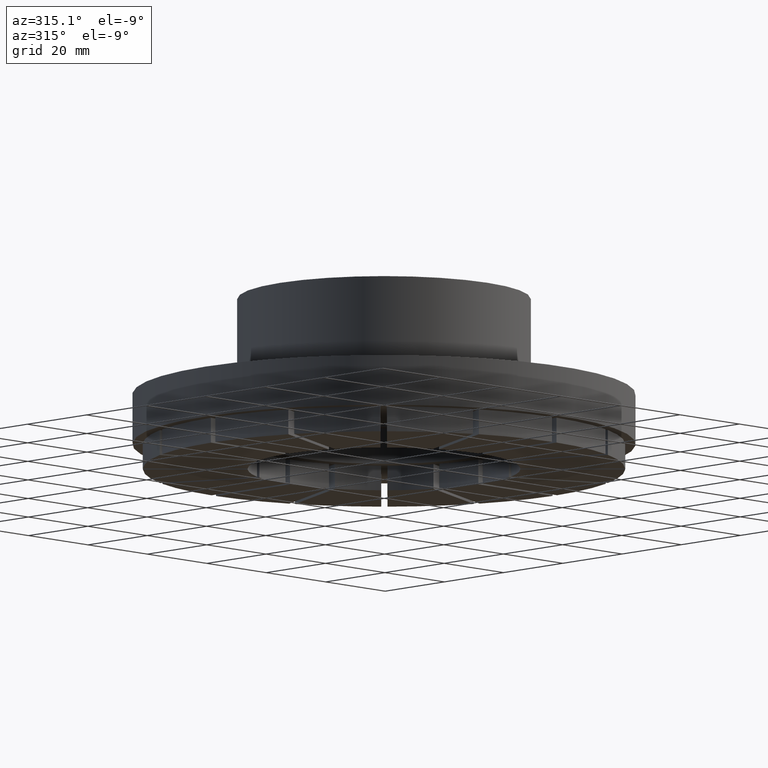
[diagram: clean part render]
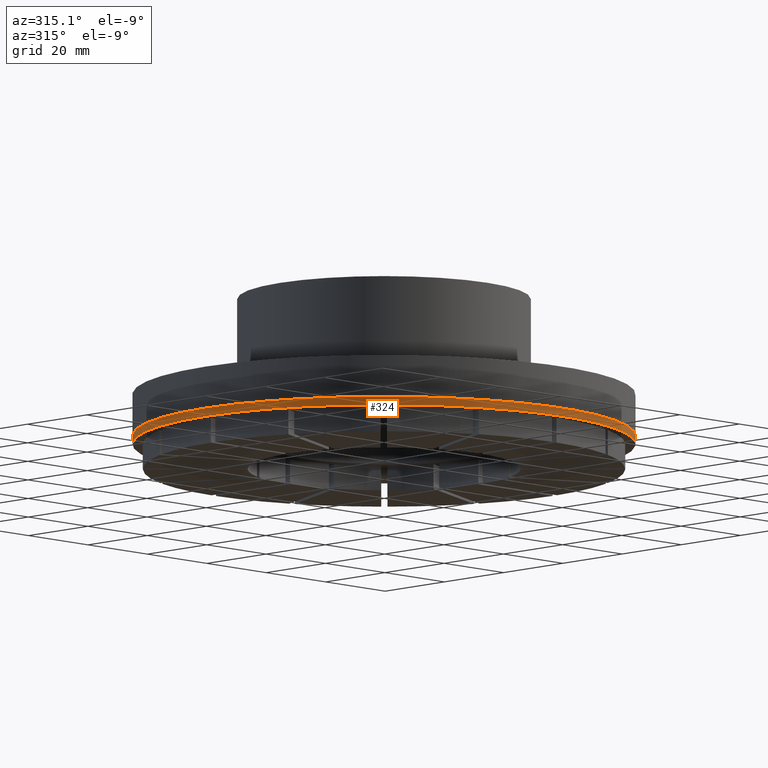
[diagram: same view with one face highlighted and labeled with its STEP entity id]
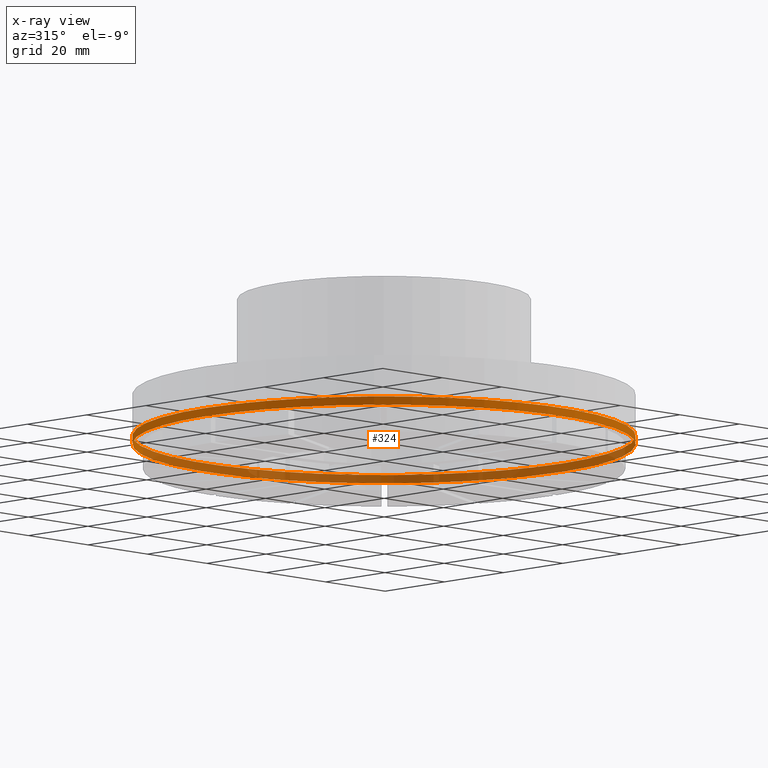
[diagram: x-ray of the same camera — body ghosted, the highlighted face saturated]
A machine part, auxiliary view. The second image highlights one B-rep face of the part: STEP entity #324.
The next image is the same camera in x-ray: the body ghosted, the highlighted face saturated — about 47% of this face is hidden behind the body in this view.
In plain terms, the highlighted cylindrical surface (bore or boss wall) has radius 60 mm, axis along (-0, 0, -1).
Its self-contained STEP definition (entity closure, byte-faithful):
#324 = ADVANCED_FACE( '', ( #521, #522 ), #523, .T. );
#521 = FACE_OUTER_BOUND( '', #773, .T. );
#522 = FACE_OUTER_BOUND( '', #774, .T. );
#523 = CYLINDRICAL_SURFACE( '', #775, 60.0000000000000 );
#773 = EDGE_LOOP( '', ( #1128 ) );
#774 = EDGE_LOOP( '', ( #1129 ) );
#775 = AXIS2_PLACEMENT_3D( '', #1130, #1131, #1132 );
#1128 = ORIENTED_EDGE( '', *, *, #1830, .T. );
#1129 = ORIENTED_EDGE( '', *, *, #1864, .F. );
#1130 = CARTESIAN_POINT( '', ( 0.000000000000000, 0.000000000000000, 6.00000000000000 ) );
#1131 = DIRECTION( '', ( -0.000000000000000, 0.000000000000000, -1.00000000000000 ) );
#1132 = DIRECTION( '', ( 1.00000000000000, 0.000000000000000, 0.000000000000000 ) );
#1830 = EDGE_CURVE( '', #2137, #2137, #2138, .T. );
#1864 = EDGE_CURVE( '', #2205, #2205, #2206, .T. );
#2137 = VERTEX_POINT( '', #2726 );
#2138 = CIRCLE( '', #2727, 60.0000000000000 );
#2205 = VERTEX_POINT( '', #2810 );
#2206 = CIRCLE( '', #2811, 60.0000000000000 );
#2726 = CARTESIAN_POINT( '', ( 60.0000000000000, 0.000000000000000, 6.00000000000000 ) );
#2727 = AXIS2_PLACEMENT_3D( '', #3331, #3332, #3333 );
#2810 = CARTESIAN_POINT( '', ( 60.0000000000000, 0.000000000000000, 8.00000000000000 ) );
#2811 = AXIS2_PLACEMENT_3D( '', #3401, #3402, #3403 );
#3331 = CARTESIAN_POINT( '', ( 0.000000000000000, 0.000000000000000, 6.00000000000000 ) );
#3332 = DIRECTION( '', ( 0.000000000000000, 0.000000000000000, 1.00000000000000 ) );
#3333 = DIRECTION( '', ( 1.00000000000000, 0.000000000000000, 0.000000000000000 ) );
#3401 = CARTESIAN_POINT( '', ( 0.000000000000000, 0.000000000000000, 8.00000000000000 ) );
#3402 = DIRECTION( '', ( 0.000000000000000, 0.000000000000000, 1.00000000000000 ) );
#3403 = DIRECTION( '', ( 1.00000000000000, 0.000000000000000, 0.000000000000000 ) );